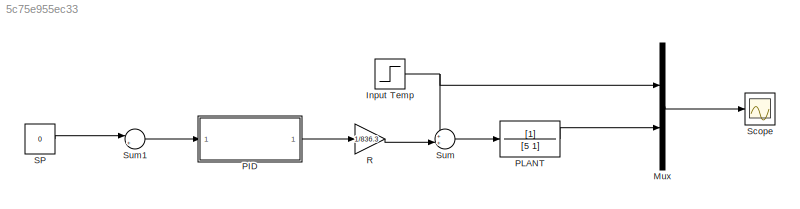
MODEL slx_5c75e955ec33
KIND model
BLOCK [Step] Input Temp
  After = 10
  SampleTime = 0
BLOCK [Mux] Mux
  DisplayOption = bar
  Inputs = 2
  Ports = [2, 1]
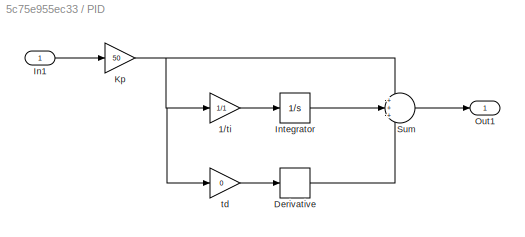
BLOCK [SubSystem] PID
  Ports = [1, 1]
  RequestExecContextInheritance = off
BLOCK [Gain] PID/1//ti
  Gain = 1/1
  OutDataTypeStr = Inherit: Inherit via internal rule
  ParamDataTypeStr = Inherit: Inherit via internal rule
  SaturateOnIntegerOverflow = off
BLOCK [Derivative] PID/Derivative
BLOCK [Inport] PID/In1
  IconDisplay = Port number
BLOCK [Integrator] PID/Integrator
  Ports = [1, 1]
BLOCK [Gain] PID/Kp 
  Gain = 50
  OutDataTypeStr = Inherit: Inherit via internal rule
  ParamDataTypeStr = Inherit: Inherit via internal rule
  SaturateOnIntegerOverflow = off
BLOCK [Outport] PID/Out1
  IconDisplay = Port number
BLOCK [Sum] PID/Sum
  IconShape = round
  InputSameDT = off
  Inputs = +++
  OutDataTypeStr = Inherit: Inherit via internal rule
  Ports = [3, 1]
  SaturateOnIntegerOverflow = off
BLOCK [Gain] PID/td
  Gain = 0
  OutDataTypeStr = Inherit: Inherit via internal rule
  ParamDataTypeStr = Inherit: Inherit via internal rule
  SaturateOnIntegerOverflow = off
BLOCK [TransferFcn] PLANT
  Denominator = [5 1]
BLOCK [Gain] R
  Gain = 1/836.3
  OutDataTypeStr = Inherit: Inherit via internal rule
  ParamDataTypeStr = Inherit: Inherit via internal rule
  SaturateOnIntegerOverflow = off
BLOCK [Constant] SP
  Value = 0
BLOCK [Scope] Scope
  Floating = off
  NumInputPorts = 1
  Ports = [1]
  ShowLegends = off
  ZoomMode = xonly
BLOCK [Sum] Sum
  IconShape = round
  InputSameDT = off
  Inputs = ++|
  OutDataTypeStr = Inherit: Inherit via internal rule
  Ports = [2, 1]
  SaturateOnIntegerOverflow = off
BLOCK [Sum] Sum1
  IconShape = round
  InputSameDT = off
  Inputs = |+-
  OutDataTypeStr = Inherit: Inherit via internal rule
  Ports = [2, 1]
  SaturateOnIntegerOverflow = off
NET Input Temp:1 -> Mux:1, Sum:1
LINE Mux:1 -> Scope:1
LINE PID/1//ti:1 -> PID/Integrator:1
LINE PID/Derivative:1 -> PID/Sum:3
LINE PID/In1:1 -> PID/Kp :1
LINE PID/Integrator:1 -> PID/Sum:2
NET PID/Kp :1 -> PID/1//ti:1, PID/Sum:1, PID/td:1
LINE PID/Sum:1 -> PID/Out1:1
LINE PID/td:1 -> PID/Derivative:1
LINE PID:1 -> R:1
LINE PLANT:1 -> Mux:2
LINE R:1 -> Sum:2
LINE SP:1 -> Sum1:1
LINE Sum1:1 -> PID:1
LINE Sum:1 -> PLANT:1
note: NET lines group one-source signal fan-out (src -> all destinations, sorted); 1:1 wires keep LINE
